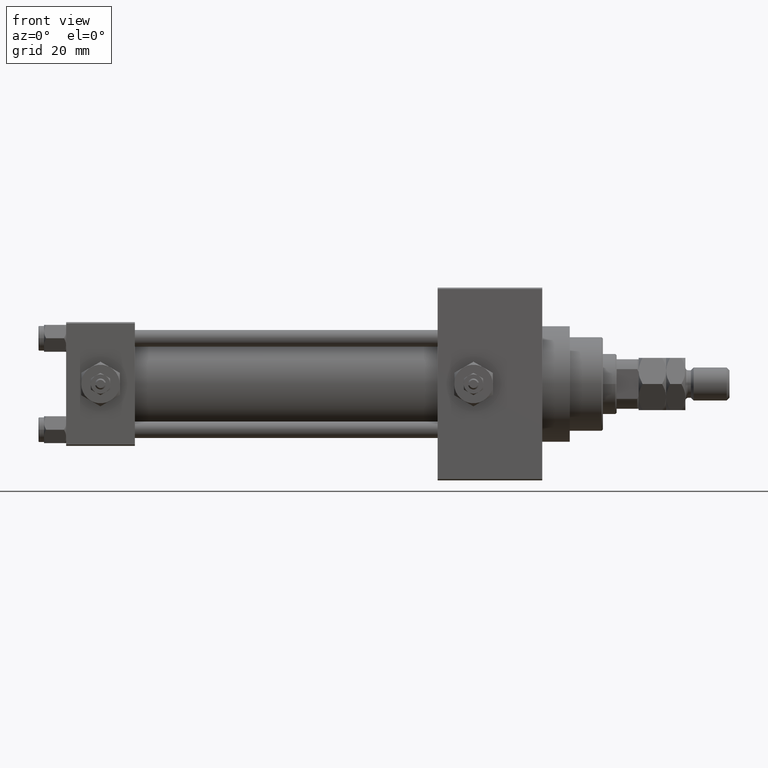
[diagram: clean part render]
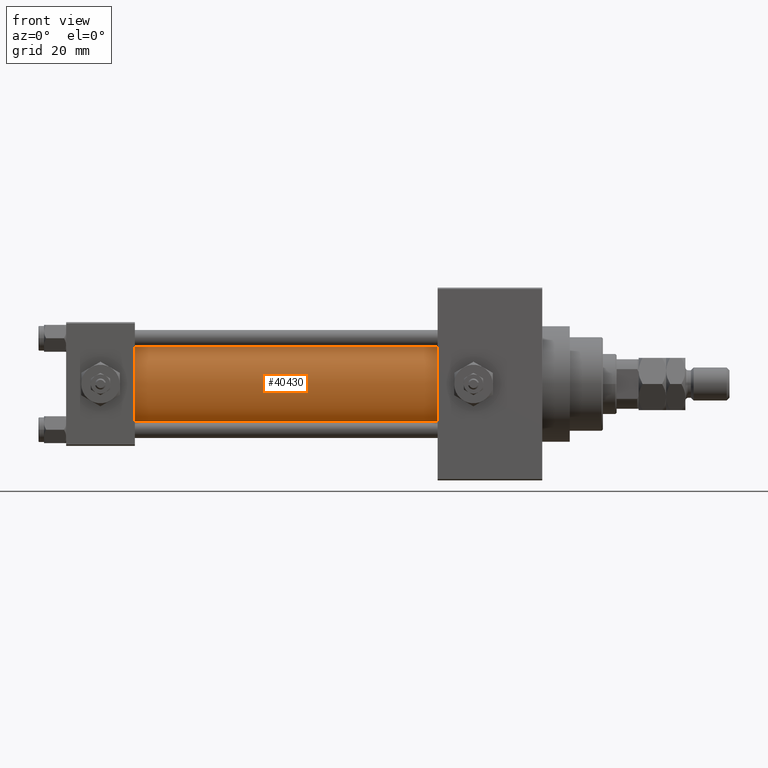
[diagram: same view with one face highlighted and labeled with its STEP entity id]
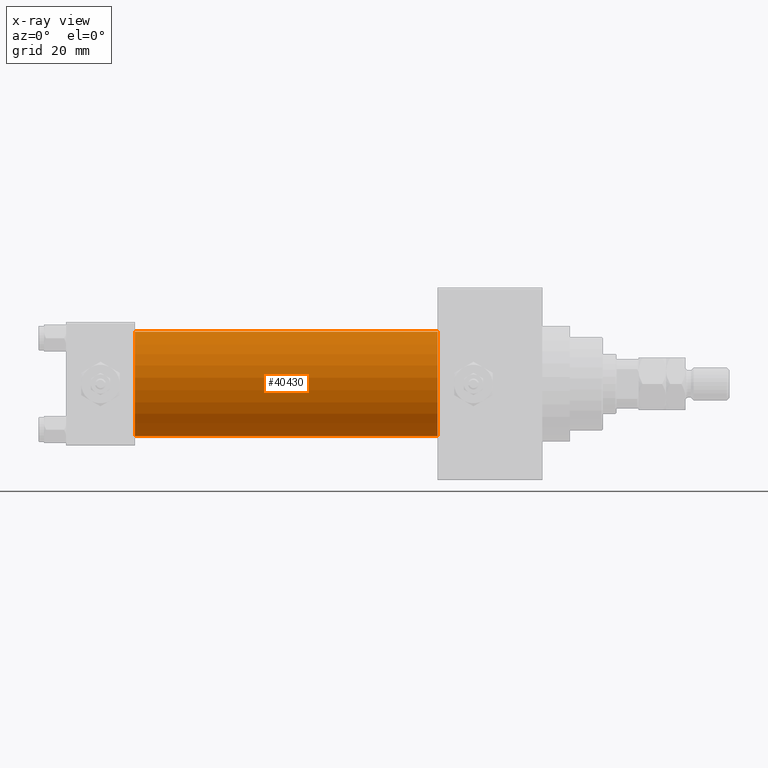
[diagram: x-ray of the same camera — body ghosted, the highlighted face saturated]
A machine part, front view. The second image highlights one B-rep face of the part: STEP entity #40430.
The next image is the same camera in x-ray: the body ghosted, the highlighted face saturated — about 0% of this face is hidden behind the body in this view.
In plain terms, the highlighted cylindrical surface (partial cylindrical patch) has radius 19 mm, axis along (-1, -0, -0).
Its self-contained STEP definition (entity closure, byte-faithful):
#5462 = CARTESIAN_POINT ( 'NONE',  ( 24.99999999999999289, -2.752562955852396712E-16, -19.00000000000000000 ) ) ;
#5645 = VERTEX_POINT ( 'NONE', #5462 ) ;
#6045 = ORIENTED_EDGE ( 'NONE', *, *, #10145, .T. ) ;
#7032 = DIRECTION ( 'NONE',  ( 1.000000000000000000, -0.000000000000000000, 0.000000000000000000 ) ) ;
#9022 = DIRECTION ( 'NONE',  ( 0.000000000000000000, 0.000000000000000000, 1.000000000000000000 ) ) ;
#9274 = CARTESIAN_POINT ( 'NONE',  ( 135.0000000000000000, -2.602085213965210642E-15, 0.000000000000000000 ) ) ;
#9885 = AXIS2_PLACEMENT_3D ( 'NONE', #37598, #26583, #41450 ) ;
#10082 = CARTESIAN_POINT ( 'NONE',  ( 24.99999999999999289, -2.602085213965210642E-15, 19.00000000000000000 ) ) ;
#10145 = EDGE_CURVE ( 'NONE', #32713, #5645, #50560, .T. ) ;
#10981 = DIRECTION ( 'NONE',  ( -1.000000000000000000, -0.000000000000000000, -0.000000000000000000 ) ) ;
#11013 = EDGE_LOOP ( 'NONE', ( #24973, #18554, #40080, #6045 ) ) ;
#12280 = VECTOR ( 'NONE', #10981, 1000.000000000000000 ) ;
#14033 = LINE ( 'NONE', #46312, #22163 ) ;
#15693 = EDGE_CURVE ( 'NONE', #21590, #32713, #46605, .T. ) ;
#16958 = DIRECTION ( 'NONE',  ( -1.000000000000000000, -0.000000000000000000, -0.000000000000000000 ) ) ;
#17783 = AXIS2_PLACEMENT_3D ( 'NONE', #42152, #7032, #18576 ) ;
#18071 = CIRCLE ( 'NONE', #9885, 19.00000000000000000 ) ;
#18554 = ORIENTED_EDGE ( 'NONE', *, *, #33981, .F. ) ;
#18576 = DIRECTION ( 'NONE',  ( 0.000000000000000000, 0.000000000000000000, 1.000000000000000000 ) ) ;
#20658 = AXIS2_PLACEMENT_3D ( 'NONE', #9274, #16958, #9022 ) ;
#21590 = VERTEX_POINT ( 'NONE', #46480 ) ;
#22163 = VECTOR ( 'NONE', #26842, 1000.000000000000000 ) ;
#24973 = ORIENTED_EDGE ( 'NONE', *, *, #34030, .F. ) ;
#26583 = DIRECTION ( 'NONE',  ( 1.000000000000000000, 0.000000000000000000, 0.000000000000000000 ) ) ;
#26842 = DIRECTION ( 'NONE',  ( -1.000000000000000000, -0.000000000000000000, -0.000000000000000000 ) ) ;
#31968 = CARTESIAN_POINT ( 'NONE',  ( 135.0000000000000000, -2.752562955852396712E-16, -19.00000000000000000 ) ) ;
#32713 = VERTEX_POINT ( 'NONE', #10082 ) ;
#33981 = EDGE_CURVE ( 'NONE', #21590, #35578, #18071, .T. ) ;
#34030 = EDGE_CURVE ( 'NONE', #35578, #5645, #14033, .T. ) ;
#34039 = CARTESIAN_POINT ( 'NONE',  ( 135.0000000000000000, -2.602085213965210642E-15, 19.00000000000000000 ) ) ;
#35578 = VERTEX_POINT ( 'NONE', #31968 ) ;
#37598 = CARTESIAN_POINT ( 'NONE',  ( 135.0000000000000000, -2.602085213965210642E-15, 0.000000000000000000 ) ) ;
#40080 = ORIENTED_EDGE ( 'NONE', *, *, #15693, .T. ) ;
#40430 = ADVANCED_FACE ( 'NONE', ( #48475 ), #44124, .T. ) ;
#41450 = DIRECTION ( 'NONE',  ( 0.000000000000000000, 0.000000000000000000, -1.000000000000000000 ) ) ;
#42152 = CARTESIAN_POINT ( 'NONE',  ( 24.99999999999999289, -2.602085213965210642E-15, 0.000000000000000000 ) ) ;
#44124 = CYLINDRICAL_SURFACE ( 'NONE', #20658, 19.00000000000000000 ) ;
#46312 = CARTESIAN_POINT ( 'NONE',  ( 135.0000000000000000, -2.752562955852396712E-16, -19.00000000000000000 ) ) ;
#46480 = CARTESIAN_POINT ( 'NONE',  ( 135.0000000000000000, -2.602085213965210642E-15, 19.00000000000000000 ) ) ;
#46605 = LINE ( 'NONE', #34039, #12280 ) ;
#48475 = FACE_OUTER_BOUND ( 'NONE', #11013, .T. ) ;
#50560 = CIRCLE ( 'NONE', #17783, 19.00000000000000000 ) ;